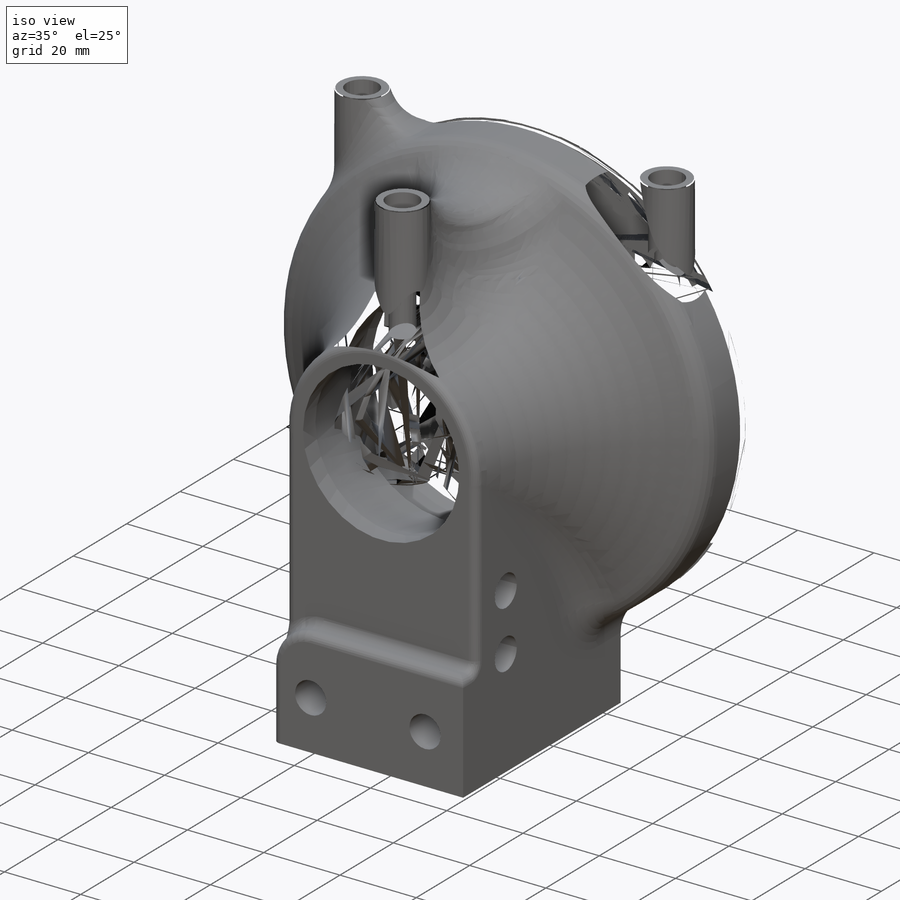
[diagram: iso view]
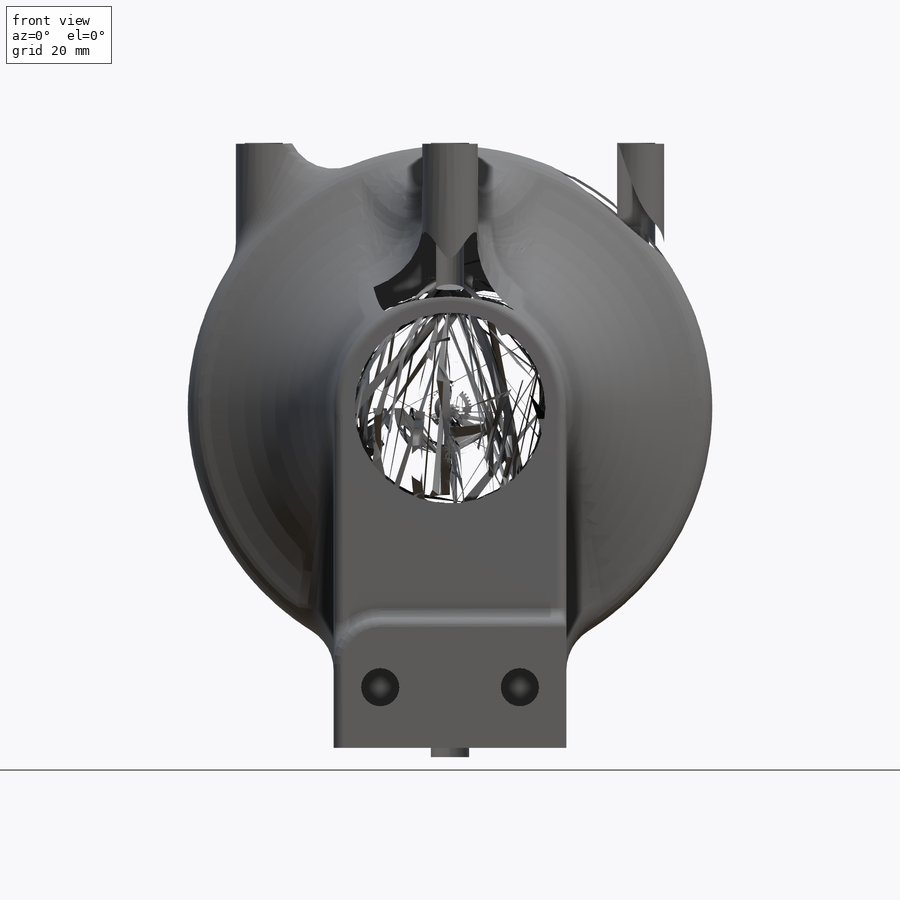
[diagram: front view]
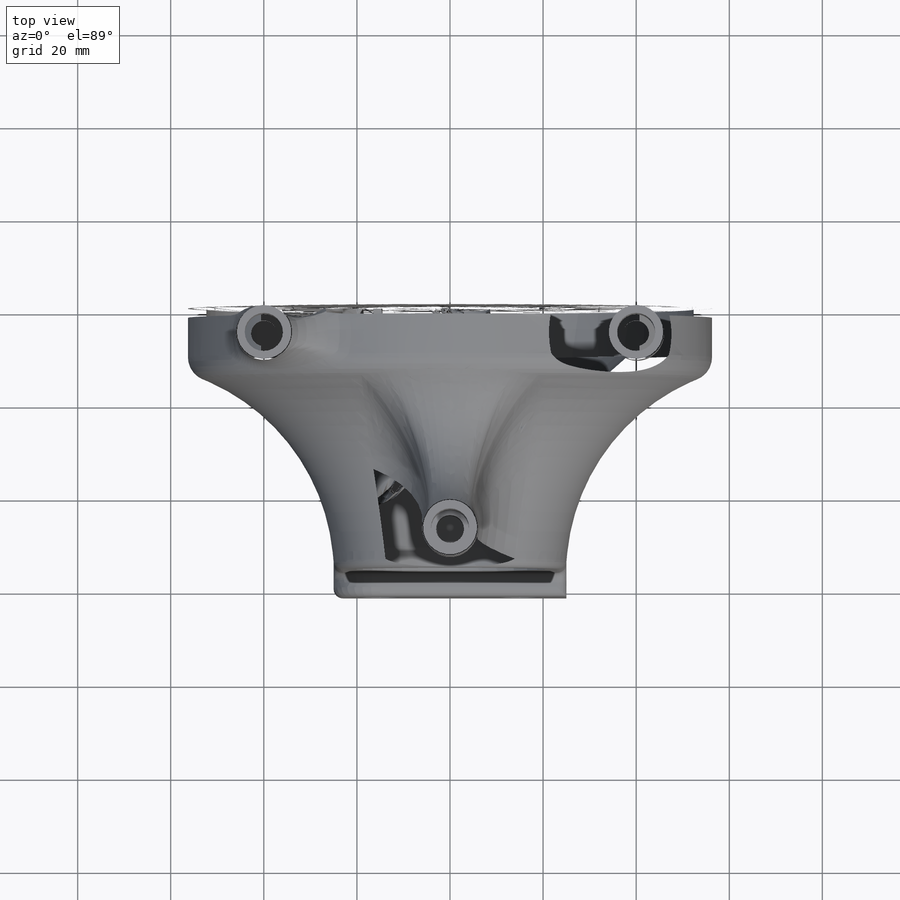
[diagram: top view]
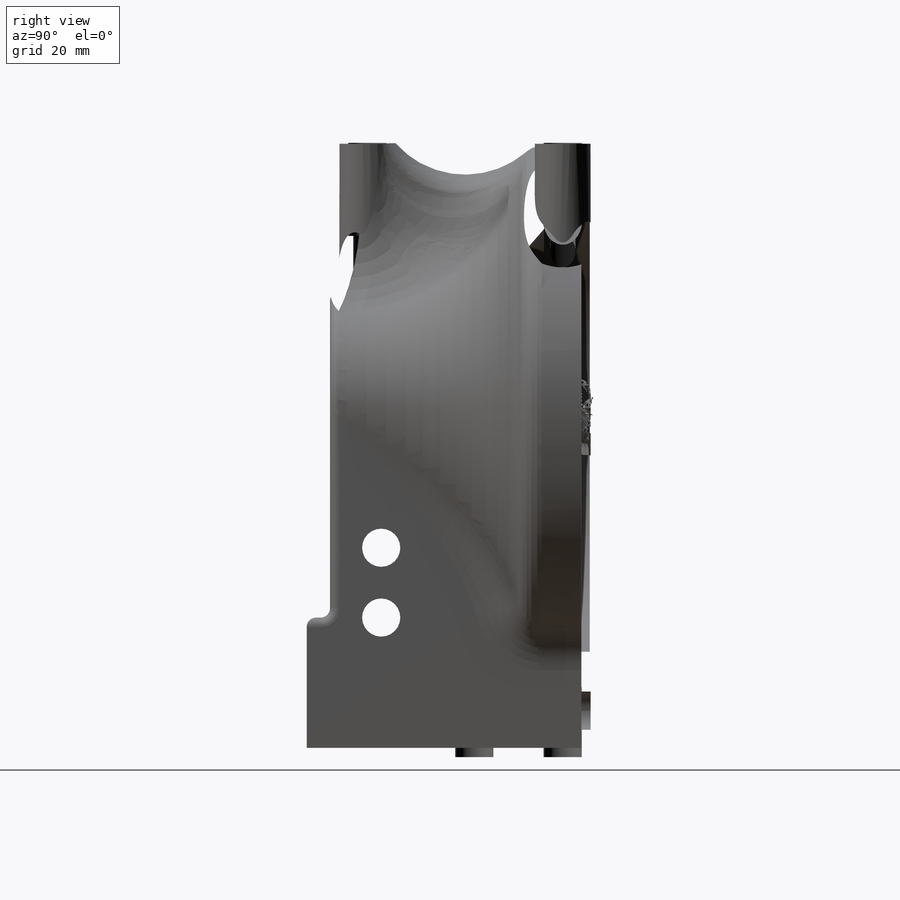
[diagram: right view]
SOLIDWORKS PART (.sldprt)
format: sldprt  version: not decoded by parser v0  size: 1,531,392 bytes
history: native  units: mm
features: sketch x12, fillet x8, plane x7, cut_extrude x5, extrude x4, material x1, revolve x1, hole x1 (+9 scaffold rows collapsed)
feature tree (48):
  scaffold x9  (default folders/planes/origin — collapsed)
  material  "ABS"
  plane  "Ebene vorne"
  plane  "Ebene oben"
  plane  "Ebene rechts"
  sketch  "Skizze2"  dims[c1.D17=45.0mm c1.D1=104.7mm c1.D2=10.0mm c1.D3=~64.840766mm c1.D4=29.0mm c1.D5=56.5mm c1.D6=77.0mm c1.D7=19.5mm c1.D8=41.0mm c2.D3=30.0mm c2.D9=41.5mm c2.D10=49.0mm c2.D11=4.0mm c2.D12=14.35mm c3.D3=50.0mm c3.D4=53.0mm c3.D5=56.5mm c4.D4=19.0mm c4.D7=13.0mm c4.D12=50.0mm c4.D8=5.0mm c4.D9=41.0mm c4.D10=41.5mm c4.D3=24.0mm c4.D13=~14.766942mm c4.D5=54.0mm c5.D7=13.0mm c5.D13=56.5mm c5.D14=4.0mm c5.D15=50.0mm c5.D16=4.0mm c5.D18=2.0mm]
  revolve  "Rotation1"  Angle=360deg
  plane  "Ebene1"  Offset=75mm
  sketch  "Skizze3"  dims[D1=25.0mm D2=25.0mm]
  extrude  "Aufsatz-Linear austragen2"  Depth=10mm
  fillet  "Verrundung3"  Radius=5mm
  fillet  "Verrundung5"  Radius=10mm
  sketch  "Skizze18"  dims[D1=30.0mm]
  extrude  "Aufsatz-Linear austragen5"  Depth=5mm
  hole  "Stirnsenkung fur M3 Senkschraube (Kopf Button)1"  Diameter=6mm Depth=60mm
  sketch  "Skizze15"  dims[c1.D1=25.0mm c1.D2=6.0mm c1.D3=~8.940556mm c2.D2=6.0mm c2.D3=~26.482006mm c2.D1=25.0mm]
  sketch  "Skizze16"  dims[hole-wizard template sketch: 28 standard entries collapsed; hole parameters kept: c8.Bohrerdurchmesser=6.0mm c8.Bohrungstiefe=60.0mm c8.Senkdurchmesser2=8.2mm c8.Senktiefe2=15.0mm c8.D5=~14.816244mm c8.Spitzenwinkel=118.0deg]
  sketch  "Skizze19"  dims[D1=8.2mm D2=15.0mm D3=15.0mm D4=15.0mm]
  cut_extrude  "Schnitt-Linear austragen2"  Depth=20mm
  sketch  "Skizze22"  dims[D3=8.2mm D1=35.0mm D2=10.0mm D4=17.5mm]
  cut_extrude  "Schnitt-Linear austragen3"  Depth=20mm
  sketch  "Skizze23"  dims[c1.D1=8.2mm c1.D3=~7.937163mm c1.D2=30.0mm c2.D3=45.0mm c2.D4=7.0mm c2.D5=16.0mm c2.D6=20.0mm c2.D7=~23.294487mm c3.D7=90.0deg c4.D7=38.0mm]
  cut_extrude  "Schnitt-Linear austragen4"  [1 undecoded]
  fillet  "Verrundung17"  Radius=10mm
  fillet  "Verrundung18"  Radius=2mm
  plane  "Ebene3"  Offset=5mm
  plane  "Ebene4"  Offset=57mm
  sketch  "Skizze24"  dims[D1=12.0mm D2=8.2mm D3=80.0mm D4=40.0mm D5=6.0mm D6=48.0mm]
  extrude  "Aufsatz-Linear austragen6"  Depth=20mm
  plane  "Ebene6"  Offset=20mm
  sketch  "Skizze29"  dims[D1=6.0mm]
  extrude  "Aufsatz-Linear austragen7"  Depth=10mm
  fillet  "Verrundung21"  Radius=10mm
  fillet  "Verrundung22"  Radius=20mm
  sketch  "Skizze26"  dims[D1=5.5mm]
  cut_extrude  "Schnitt-Linear austragen6"  Depth=50mm
  sketch  "Skizze27"
  cut_extrude  "Schnitt-Linear austragen7"  Depth=18mm
  fillet  "Verrundung28"  Radius=2mm
  fillet  "Verrundung30"  Radius=0.2mm
decode coverage: 29 of 31 modeling features carry decoded parameters
note: ~ marks probable driven/reference dimensions
note: 1 parameter value undecoded
note: suppression state not decoded; provenance and decode notes live in map.json
